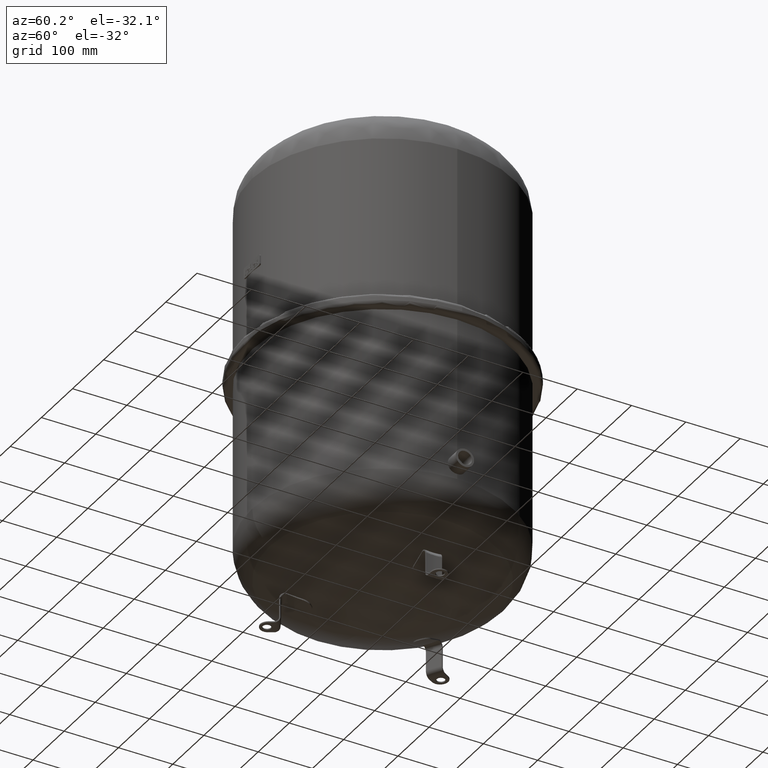
[diagram: clean part render]
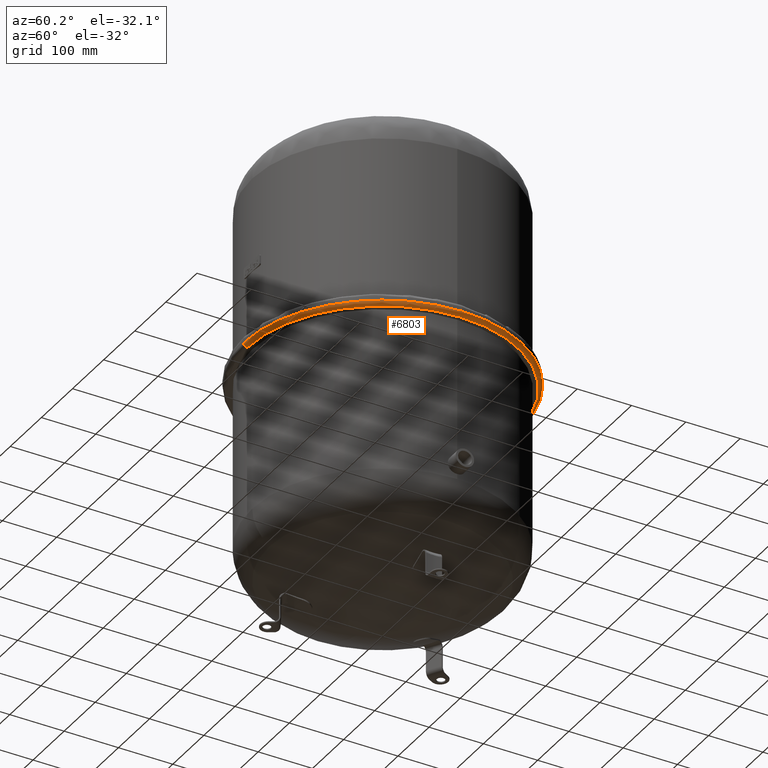
[diagram: same view with one face highlighted and labeled with its STEP entity id]
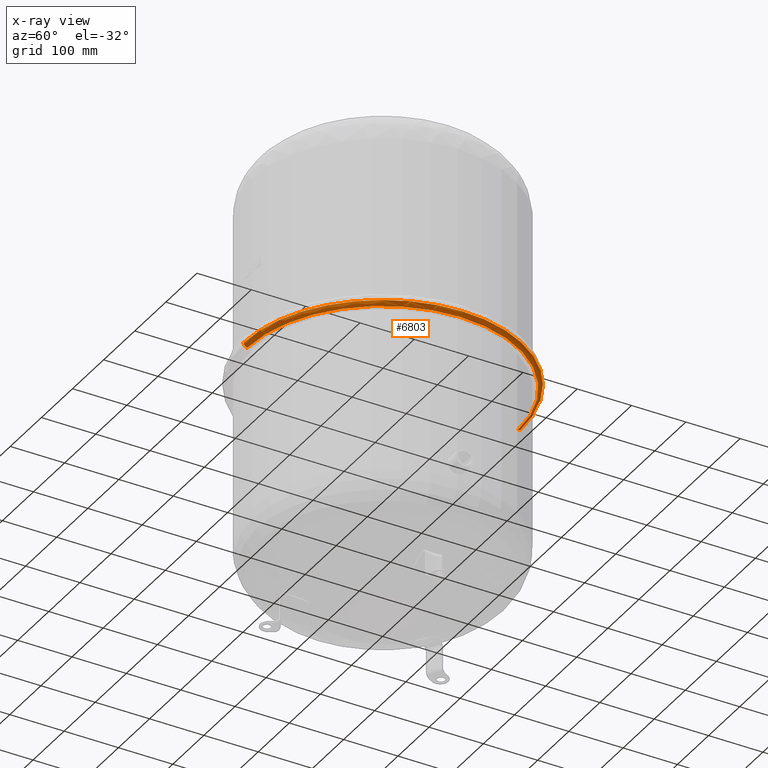
[diagram: x-ray of the same camera — body ghosted, the highlighted face saturated]
A machine part, auxiliary view. The second image highlights one B-rep face of the part: STEP entity #6803.
The next image is the same camera in x-ray: the body ghosted, the highlighted face saturated — about 2% of this face is hidden behind the body in this view.
In plain terms, the highlighted toroidal blend (fillet) surface has major radius 249 mm and minor (blend) radius 7 mm.
Its self-contained STEP definition (entity closure, byte-faithful):
#6560=CARTESIAN_POINT('',(0.0,249.00000000000006,449.25));
#6561=VERTEX_POINT('',#6560);
#6562=CARTESIAN_POINT('',(0.0,256.0,456.25));
#6563=VERTEX_POINT('',#6562);
#6564=CARTESIAN_POINT('',(0.0,249.00000000000006,456.25));
#6565=DIRECTION('',(1.0,0.0,0.0));
#6566=DIRECTION('',(0.0,1.0,0.0));
#6567=AXIS2_PLACEMENT_3D('',#6564,#6565,#6566);
#6568=CIRCLE('',#6567,7.000000000000001);
#6569=EDGE_CURVE('',#6561,#6563,#6568,.T.);
#6580=CARTESIAN_POINT('',(-3.049270E-014,-249.00000000000006,449.25));
#6581=VERTEX_POINT('',#6580);
#6589=CARTESIAN_POINT('',(-3.134992E-014,-256.0,456.25));
#6590=VERTEX_POINT('',#6589);
#6591=CARTESIAN_POINT('',(-3.049270E-014,-249.00000000000006,456.25));
#6592=DIRECTION('',(-1.0,0.0,0.0));
#6593=DIRECTION('',(0.0,-1.0,0.0));
#6594=AXIS2_PLACEMENT_3D('',#6591,#6592,#6593);
#6595=CIRCLE('',#6594,7.000000000000001);
#6596=EDGE_CURVE('',#6581,#6590,#6595,.T.);
#6631=CARTESIAN_POINT('',(256.0,-3.112030E-014,456.25));
#6632=VERTEX_POINT('',#6631);
#6633=CARTESIAN_POINT('',(0.0,2.296213E-016,456.25));
#6634=DIRECTION('',(0.0,0.0,-1.0));
#6635=DIRECTION('',(-1.0,0.0,0.0));
#6636=AXIS2_PLACEMENT_3D('',#6633,#6634,#6635);
#6637=CIRCLE('',#6636,256.0);
#6638=EDGE_CURVE('',#6632,#6590,#6637,.T.);
#6774=CARTESIAN_POINT('',(0.0,2.296213E-016,456.25));
#6775=DIRECTION('',(0.0,0.0,-1.0));
#6776=DIRECTION('',(-1.0,0.0,0.0));
#6777=AXIS2_PLACEMENT_3D('',#6774,#6775,#6776);
#6778=CIRCLE('',#6777,256.0);
#6779=EDGE_CURVE('',#6563,#6632,#6778,.T.);
#6785=CARTESIAN_POINT('',(0.0,2.296213E-016,456.25));
#6786=DIRECTION('',(0.0,6.123234E-017,-1.0));
#6787=DIRECTION('',(0.0,1.0,0.0));
#6788=AXIS2_PLACEMENT_3D('',#6785,#6786,#6787);
#6789=TOROIDAL_SURFACE('',#6788,249.00000000000006,7.000000000000001);
#6790=ORIENTED_EDGE('',*,*,#6569,.T.);
#6791=ORIENTED_EDGE('',*,*,#6779,.T.);
#6792=ORIENTED_EDGE('',*,*,#6638,.T.);
#6793=ORIENTED_EDGE('',*,*,#6596,.F.);
#6794=CARTESIAN_POINT('',(0.0,6.582477E-016,449.25));
#6795=DIRECTION('',(0.0,0.0,-1.0));
#6796=DIRECTION('',(-1.0,0.0,0.0));
#6797=AXIS2_PLACEMENT_3D('',#6794,#6795,#6796);
#6798=CIRCLE('',#6797,249.00000000000006);
#6799=EDGE_CURVE('',#6561,#6581,#6798,.T.);
#6800=ORIENTED_EDGE('',*,*,#6799,.F.);
#6801=EDGE_LOOP('',(#6790,#6791,#6792,#6793,#6800));
#6802=FACE_OUTER_BOUND('',#6801,.T.);
#6803=ADVANCED_FACE('',(#6802),#6789,.T.);